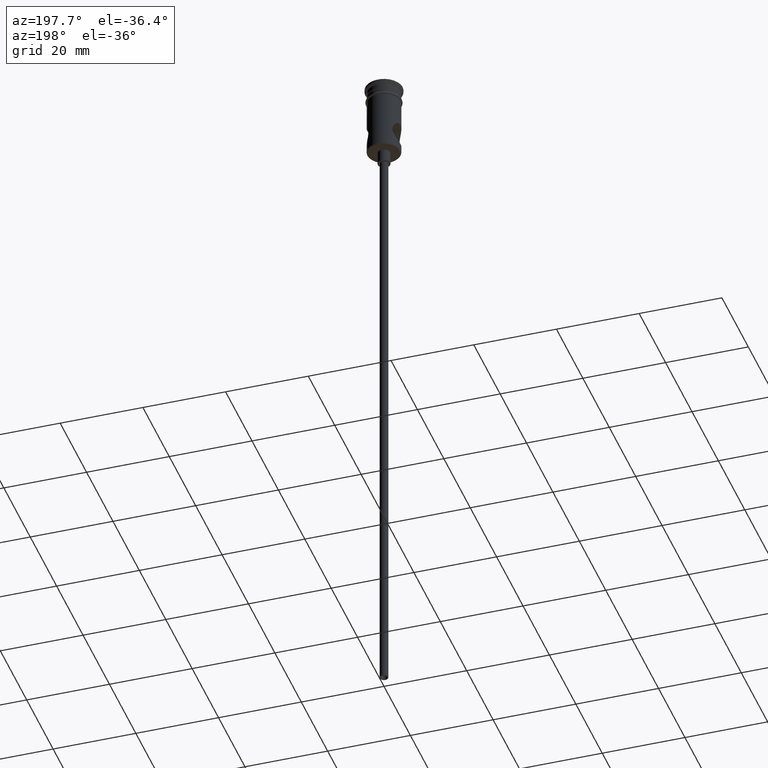
[diagram: clean part render]
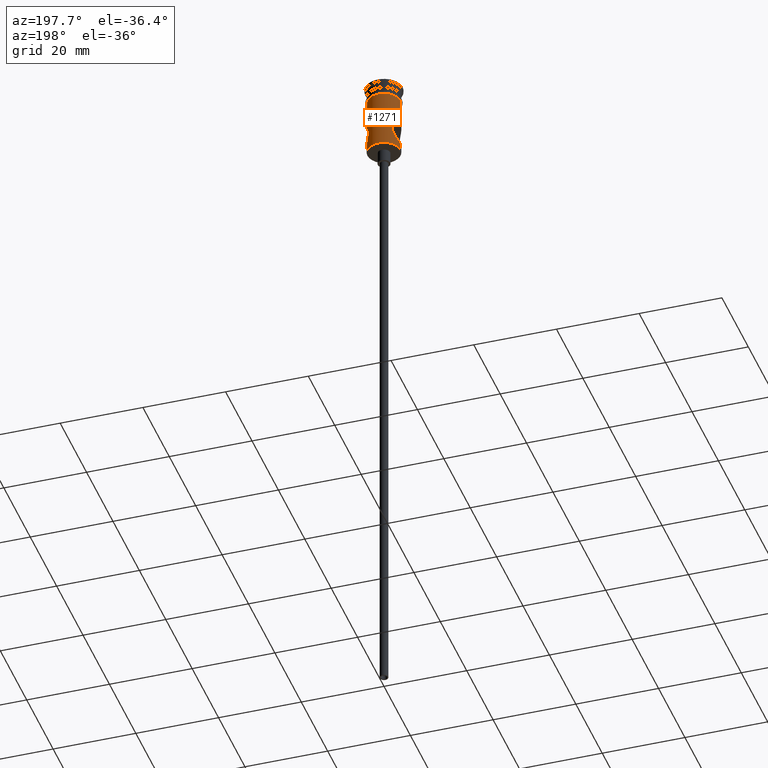
[diagram: same view with one face highlighted and labeled with its STEP entity id]
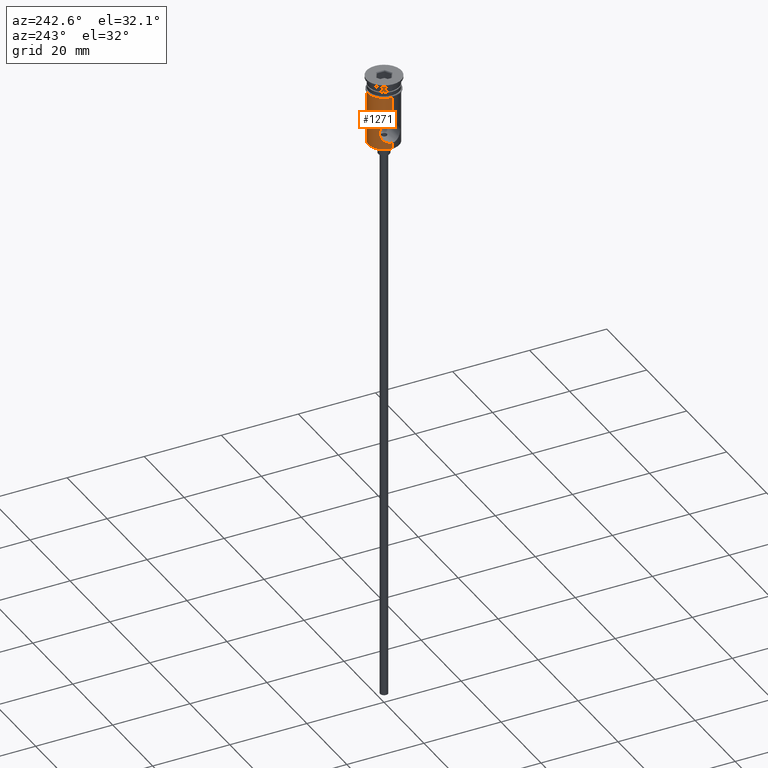
[diagram: same view with one face highlighted and labeled with its STEP entity id]
A machine part, auxiliary view. The second image highlights one B-rep face of the part: STEP entity #1271.
A second angle (auxiliary view) of the same face is appended — the face is thin or edge-on in the first view.
In plain terms, the highlighted cylindrical surface (edge-blend (fillet) strip) has radius 4 mm, axis along (-0, -0, 1).
Its self-contained STEP definition (entity closure, byte-faithful):
#1 = VECTOR ( 'NONE', #418, 1000.000000000000000 ) ;
#2 = EDGE_CURVE ( 'NONE', #749, #572, #776, .T. ) ;
#6 = CARTESIAN_POINT ( 'NONE',  ( -4.000000000000000000, 4.898875736391346734E-16, -10.75000000000000000 ) ) ;
#15 = CIRCLE ( 'NONE', #1092, 4.000000000000000000 ) ;
#34 = EDGE_CURVE ( 'NONE', #740, #749, #869, .T. ) ;
#39 = CARTESIAN_POINT ( 'NONE',  ( -3.627876891014071070, 1.707999379360746195, -11.31682734715131922 ) ) ;
#62 = CARTESIAN_POINT ( 'NONE',  ( -3.898650158565305723, 0.9113899793340292099, -10.89906584721212646 ) ) ;
#75 = CARTESIAN_POINT ( 'NONE',  ( -3.805236129597703076, 1.244842054105928630, -15.95868906918809493 ) ) ;
#88 = CARTESIAN_POINT ( 'NONE',  ( -3.986675172797201405, 0.3739722490365800511, -16.23071926583458691 ) ) ;
#90 = CARTESIAN_POINT ( 'NONE',  ( 4.000000000000000000, -2.885398231453893753E-20, -10.75000000000000000 ) ) ;
#92 = CARTESIAN_POINT ( 'NONE',  ( 3.153159797772616901, 2.462863546563664574, -12.26354897380435460 ) ) ;
#105 = ORIENTED_EDGE ( 'NONE', *, *, #1287, .T. ) ;
#109 = CARTESIAN_POINT ( 'NONE',  ( 3.153790941630460587, 2.462039204780214874, -14.73790887393710136 ) ) ;
#121 = CARTESIAN_POINT ( 'NONE',  ( 4.000000000000001776, 0.1887778026635980599, -16.25000000000000355 ) ) ;
#138 = LINE ( 'NONE', #152, #336 ) ;
#152 = CARTESIAN_POINT ( 'NONE',  ( -4.000000000000000000, 4.898587196589412829E-16, 0.000000000000000000 ) ) ;
#160 = VERTEX_POINT ( 'NONE', #301 ) ;
#191 = DIRECTION ( 'NONE',  ( -0.000000000000000000, -0.000000000000000000, 1.000000000000000000 ) ) ;
#197 = CYLINDRICAL_SURFACE ( 'NONE', #1024, 4.000000000000000000 ) ;
#201 = DIRECTION ( 'NONE',  ( -0.000000000000000000, -0.000000000000000000, 1.000000000000000000 ) ) ;
#209 = CARTESIAN_POINT ( 'NONE',  ( 3.352887962353420903, 2.184498314583853240, -11.82055838298663275 ) ) ;
#213 = CARTESIAN_POINT ( 'NONE',  ( 4.000000000000000000, 0.1860873315878985856, -10.74999999999999645 ) ) ;
#227 = CARTESIAN_POINT ( 'NONE',  ( 4.000000000000000000, 0.000000000000000000, 0.000000000000000000 ) ) ;
#231 = CARTESIAN_POINT ( 'NONE',  ( 3.352571063512280070, 2.184990303520331079, -15.17882514829168805 ) ) ;
#250 = CARTESIAN_POINT ( 'NONE',  ( 4.000000000000000000, 0.000000000000000000, -3.799999999999998046 ) ) ;
#251 = CARTESIAN_POINT ( 'NONE',  ( 3.628548934766043121, 1.706512450506086465, -15.68423018591682805 ) ) ;
#254 = DIRECTION ( 'NONE',  ( -0.000000000000000000, -0.000000000000000000, 1.000000000000000000 ) ) ;
#275 = ORIENTED_EDGE ( 'NONE', *, *, #1217, .F. ) ;
#287 = ORIENTED_EDGE ( 'NONE', *, *, #1187, .T. ) ;
#291 = CARTESIAN_POINT ( 'NONE',  ( -4.000000000000000000, 4.898587196589412829E-16, -17.80000000000001137 ) ) ;
#295 = ORIENTED_EDGE ( 'NONE', *, *, #1036, .T. ) ;
#301 = CARTESIAN_POINT ( 'NONE',  ( -4.000000000000000000, -1.082428048190059701E-15, -16.25000000000000000 ) ) ;
#316 = VECTOR ( 'NONE', #1128, 1000.000000000000000 ) ;
#322 = VERTEX_POINT ( 'NONE', #250 ) ;
#336 = VECTOR ( 'NONE', #254, 1000.000000000000000 ) ;
#343 = CARTESIAN_POINT ( 'NONE',  ( 4.000000000000000000, 1.082428048190059701E-15, -16.25000000000000000 ) ) ;
#347 = CARTESIAN_POINT ( 'NONE',  ( -2.990619957445074029, 2.656825094483681760, -12.76649644725104515 ) ) ;
#350 = CARTESIAN_POINT ( 'NONE',  ( 3.986715318769655791, 0.3733211196991539360, -16.23077663263318726 ) ) ;
#353 = CARTESIAN_POINT ( 'NONE',  ( 2.990853264625744412, 2.656566527895887209, -12.76540023414572644 ) ) ;
#389 = CARTESIAN_POINT ( 'NONE',  ( -3.999999999999999112, 0.1884943161018475810, -16.25000000000000000 ) ) ;
#397 = DIRECTION ( 'NONE',  ( -1.000000000000000000, 0.000000000000000000, 0.000000000000000000 ) ) ;
#407 = CARTESIAN_POINT ( 'NONE',  ( 0.000000000000000000, 0.000000000000000000, -3.799999999999998046 ) ) ;
#409 = CARTESIAN_POINT ( 'NONE',  ( -2.923675419418522381, 2.730320526303180895, -13.87632886117500952 ) ) ;
#418 = DIRECTION ( 'NONE',  ( -0.000000000000000000, -0.000000000000000000, 1.000000000000000000 ) ) ;
#421 = CARTESIAN_POINT ( 'NONE',  ( 3.935590311853631729, 0.7380237449173248088, -10.84441589138536699 ) ) ;
#427 = B_SPLINE_CURVE_WITH_KNOTS ( 'NONE', 3,
 ( #472, #573, #1022, #462, #62, #1339, #39, #920, #1249, #1035, #490, #1328, #347, #785, #1221, #559, #409, #839, #714, #1071, #506, #1275, #950, #1055, #75, #959, #1379, #88, #389, #1182 ),
 .UNSPECIFIED., .F., .F.,
 ( 4, 2, 2, 2, 2, 2, 2, 2, 2, 2, 2, 2, 2, 2, 4 ),
 ( 0.008916109102135036726, 0.009472529091595908307, 0.01002894908105677989, 0.01114178905997852131, 0.01169820904943938943, 0.01225462903890025754, 0.01281104902836112565, 0.01336746901782199376, 0.01392388900728286361, 0.01448030899674372998, 0.01559314897566546620, 0.01614956896512633605, 0.01670598895458720243, 0.01726240894404806880, 0.01781882893350893518 ),
 .UNSPECIFIED. ) ;
#429 = CARTESIAN_POINT ( 'NONE',  ( 4.000000000000000000, -2.885398231453893753E-20, -10.75000000000000000 ) ) ;
#441 = CARTESIAN_POINT ( 'NONE',  ( 3.423476604098442788, 2.073510542563412162, -15.31471501676682934 ) ) ;
#447 = VECTOR ( 'NONE', #987, 1000.000000000000000 ) ;
#462 = CARTESIAN_POINT ( 'NONE',  ( -3.935773863085988200, 0.7372053917619743046, -10.84414365491493371 ) ) ;
#472 = CARTESIAN_POINT ( 'NONE',  ( -4.000000000000000000, 4.898875736391346734E-16, -10.75000000000000000 ) ) ;
#483 = VERTEX_POINT ( 'NONE', #291 ) ;
#490 = CARTESIAN_POINT ( 'NONE',  ( -3.152150098412337176, 2.464125728423233408, -12.26627202958722052 ) ) ;
#501 = EDGE_CURVE ( 'NONE', #322, #940, #1298, .T. ) ;
#506 = CARTESIAN_POINT ( 'NONE',  ( -3.356081183987128735, 2.194354300722539897, -15.19340172252557331 ) ) ;
#510 = DIRECTION ( 'NONE',  ( 1.000000000000000000, 0.000000000000000000, 0.000000000000000000 ) ) ;
#516 = CARTESIAN_POINT ( 'NONE',  ( 3.039098135780837762, 2.602305915985867024, -12.59307557713039216 ) ) ;
#535 = CARTESIAN_POINT ( 'NONE',  ( 2.991204009610981096, 2.656164689714076044, -14.23545628303815924 ) ) ;
#536 = CARTESIAN_POINT ( 'NONE',  ( -4.000000000000000000, 4.898587196589412829E-16, 0.000000000000000000 ) ) ;
#539 = CARTESIAN_POINT ( 'NONE',  ( 4.000000000000000000, 1.082428048190059701E-15, -16.25000000000000000 ) ) ;
#559 = CARTESIAN_POINT ( 'NONE',  ( -2.904838189979199292, 2.749893654545319421, -13.68954574786105383 ) ) ;
#566 = LINE ( 'NONE', #691, #316 ) ;
#572 = VERTEX_POINT ( 'NONE', #90 ) ;
#573 = CARTESIAN_POINT ( 'NONE',  ( -3.999999999999999112, 0.1858078852913923329, -10.75000000000000178 ) ) ;
#632 = CARTESIAN_POINT ( 'NONE',  ( 0.000000000000000000, 0.000000000000000000, 0.000000000000000000 ) ) ;
#655 = CARTESIAN_POINT ( 'NONE',  ( 2.904685908915327630, 2.750054504224673124, -13.31400209527123302 ) ) ;
#691 = CARTESIAN_POINT ( 'NONE',  ( 4.000000000000000000, 0.000000000000000000, 0.000000000000000000 ) ) ;
#695 = ORIENTED_EDGE ( 'NONE', *, *, #501, .F. ) ;
#714 = CARTESIAN_POINT ( 'NONE',  ( -3.040558828618885379, 2.600578980709926213, -14.41155145748494881 ) ) ;
#734 = DIRECTION ( 'NONE',  ( -0.000000000000000000, -0.000000000000000000, 1.000000000000000000 ) ) ;
#739 = CARTESIAN_POINT ( 'NONE',  ( 3.898469200194268236, 0.9122845588995921462, -10.89933121525977811 ) ) ;
#740 = VERTEX_POINT ( 'NONE', #890 ) ;
#749 = VERTEX_POINT ( 'NONE', #539 ) ;
#762 = CARTESIAN_POINT ( 'NONE',  ( 2.904789332996817297, 2.749945260648944512, -13.68760613050835673 ) ) ;
#768 = CARTESIAN_POINT ( 'NONE',  ( 3.629467468971919075, 1.704948656411081842, -11.31407162498316943 ) ) ;
#776 = B_SPLINE_CURVE_WITH_KNOTS ( 'NONE', 3,
 ( #343, #121, #350, #788, #797, #1224, #251, #441, #231, #1391, #109, #1188, #535, #1306, #762, #655, #1091, #353, #516, #92, #982, #209, #885, #768, #1406, #739, #421, #1087, #213, #429 ),
 .UNSPECIFIED., .F., .F.,
 ( 4, 2, 2, 2, 2, 2, 2, 2, 2, 2, 2, 2, 2, 2, 4 ),
 ( 1.048010074117292363E-18, 0.0005572568188834413133, 0.001114513637766881542, 0.002229027275533760049, 0.002786284094417199302, 0.003343540913300638122, 0.003900797732184077375, 0.004458054551067516628, 0.005015311369950955014, 0.005572568188834395135, 0.006129825007717833521, 0.006687081826601272774, 0.007801595464368153883, 0.008358852283251595738, 0.008916109102135036726 ),
 .UNSPECIFIED. ) ;
#785 = CARTESIAN_POINT ( 'NONE',  ( -2.922903409755361892, 2.731146823183896899, -13.12907672655106239 ) ) ;
#788 = CARTESIAN_POINT ( 'NONE',  ( 3.936195930800992837, 0.7345946403777908751, -16.15647894591264588 ) ) ;
#797 = CARTESIAN_POINT ( 'NONE',  ( 3.898332255911910238, 0.9125459904059147753, -16.10045093770546742 ) ) ;
#839 = CARTESIAN_POINT ( 'NONE',  ( -2.991381809801703984, 2.655967432490847546, -14.23628159399357962 ) ) ;
#846 = FACE_OUTER_BOUND ( 'NONE', #1103, .T. ) ;
#861 = CARTESIAN_POINT ( 'NONE',  ( -4.000000000000000000, 4.898587196589412829E-16, -3.799999999999998046 ) ) ;
#869 = LINE ( 'NONE', #227, #1 ) ;
#885 = CARTESIAN_POINT ( 'NONE',  ( 3.422612705757198448, 2.075016451433645770, -11.68686323689984974 ) ) ;
#890 = CARTESIAN_POINT ( 'NONE',  ( 4.000000000000000000, 0.000000000000000000, -17.80000000000001137 ) ) ;
#909 = ORIENTED_EDGE ( 'NONE', *, *, #1225, .F. ) ;
#920 = CARTESIAN_POINT ( 'NONE',  ( -3.422360837206557704, 2.075363691986896075, -11.68737297714249124 ) ) ;
#940 = VERTEX_POINT ( 'NONE', #861 ) ;
#950 = CARTESIAN_POINT ( 'NONE',  ( -3.628318813380886798, 1.691230916824618014, -15.67560887377282519 ) ) ;
#959 = CARTESIAN_POINT ( 'NONE',  ( -3.897876258935293325, 0.9143382370299266704, -16.09976330978815895 ) ) ;
#960 = ORIENTED_EDGE ( 'NONE', *, *, #2, .F. ) ;
#982 = CARTESIAN_POINT ( 'NONE',  ( 3.218452372936937866, 2.378120034323490728, -12.10820183441513365 ) ) ;
#987 = DIRECTION ( 'NONE',  ( -0.000000000000000000, -0.000000000000000000, 1.000000000000000000 ) ) ;
#1022 = CARTESIAN_POINT ( 'NONE',  ( -3.986797965649419240, 0.3731349247757173027, -10.76909995728804681 ) ) ;
#1024 = AXIS2_PLACEMENT_3D ( 'NONE', #632, #734, #1364 ) ;
#1028 = AXIS2_PLACEMENT_3D ( 'NONE', #407, #201, #510 ) ;
#1035 = CARTESIAN_POINT ( 'NONE',  ( -3.217675228092755635, 2.379195489181981316, -12.10994054056969560 ) ) ;
#1036 = EDGE_CURVE ( 'NONE', #1080, #940, #1205, .T. ) ;
#1055 = CARTESIAN_POINT ( 'NONE',  ( -3.750403272509822639, 1.399798099407463248, -15.87362618509271073 ) ) ;
#1071 = CARTESIAN_POINT ( 'NONE',  ( -3.210458317317453236, 2.392695863158818881, -14.90116197658784358 ) ) ;
#1080 = VERTEX_POINT ( 'NONE', #6 ) ;
#1087 = CARTESIAN_POINT ( 'NONE',  ( 3.986569257409959377, 0.3752541894392961708, -10.76943406977662754 ) ) ;
#1091 = CARTESIAN_POINT ( 'NONE',  ( 2.922849711538092699, 2.731208254861018148, -13.12921164836393650 ) ) ;
#1092 = AXIS2_PLACEMENT_3D ( 'NONE', #1175, #191, #397 ) ;
#1103 = EDGE_LOOP ( 'NONE', ( #105, #287, #909, #295, #695, #275, #960, #1401 ) ) ;
#1128 = DIRECTION ( 'NONE',  ( -0.000000000000000000, -0.000000000000000000, 1.000000000000000000 ) ) ;
#1175 = CARTESIAN_POINT ( 'NONE',  ( 0.000000000000000000, 0.000000000000000000, -17.80000000000001137 ) ) ;
#1182 = CARTESIAN_POINT ( 'NONE',  ( -4.000000000000000000, -1.082428048190059701E-15, -16.25000000000000000 ) ) ;
#1187 = EDGE_CURVE ( 'NONE', #483, #160, #138, .T. ) ;
#1188 = CARTESIAN_POINT ( 'NONE',  ( 3.040338712675894062, 2.600841183461505501, -14.41086802801371292 ) ) ;
#1205 = LINE ( 'NONE', #536, #447 ) ;
#1217 = EDGE_CURVE ( 'NONE', #572, #322, #566, .T. ) ;
#1221 = CARTESIAN_POINT ( 'NONE',  ( -2.904637655607715807, 2.750105472685720809, -13.31355271269106311 ) ) ;
#1224 = CARTESIAN_POINT ( 'NONE',  ( 3.758839784380466842, 1.410695475187754955, -15.88804927343668005 ) ) ;
#1225 = EDGE_CURVE ( 'NONE', #1080, #160, #427, .T. ) ;
#1249 = CARTESIAN_POINT ( 'NONE',  ( -3.352704555667196828, 2.184805989472308418, -11.82087544688862124 ) ) ;
#1271 = ADVANCED_FACE ( 'NONE', ( #846 ), #197, .T. ) ;
#1275 = CARTESIAN_POINT ( 'NONE',  ( -3.560899448792282929, 1.827460818524927255, -15.56227107929443143 ) ) ;
#1287 = EDGE_CURVE ( 'NONE', #740, #483, #15, .T. ) ;
#1298 = CIRCLE ( 'NONE', #1028, 4.000000000000000000 ) ;
#1306 = CARTESIAN_POINT ( 'NONE',  ( 2.923708177251532092, 2.730282545867590116, -13.87638281426623799 ) ) ;
#1328 = CARTESIAN_POINT ( 'NONE',  ( -3.039104102417667708, 2.602270566844717692, -12.59325405576322510 ) ) ;
#1339 = CARTESIAN_POINT ( 'NONE',  ( -3.758308184967917409, 1.412635338666774265, -11.11275848598740801 ) ) ;
#1364 = DIRECTION ( 'NONE',  ( 1.000000000000000000, 0.000000000000000000, 0.000000000000000000 ) ) ;
#1379 = CARTESIAN_POINT ( 'NONE',  ( -3.935929372452465103, 0.7361346014914833535, -16.15608523965943277 ) ) ;
#1391 = CARTESIAN_POINT ( 'NONE',  ( 3.217982150421164089, 2.378761493287735451, -14.89073011870239327 ) ) ;
#1401 = ORIENTED_EDGE ( 'NONE', *, *, #34, .F. ) ;
#1406 = CARTESIAN_POINT ( 'NONE',  ( 3.757420049329555312, 1.415307548900980095, -11.11413128623153490 ) ) ;